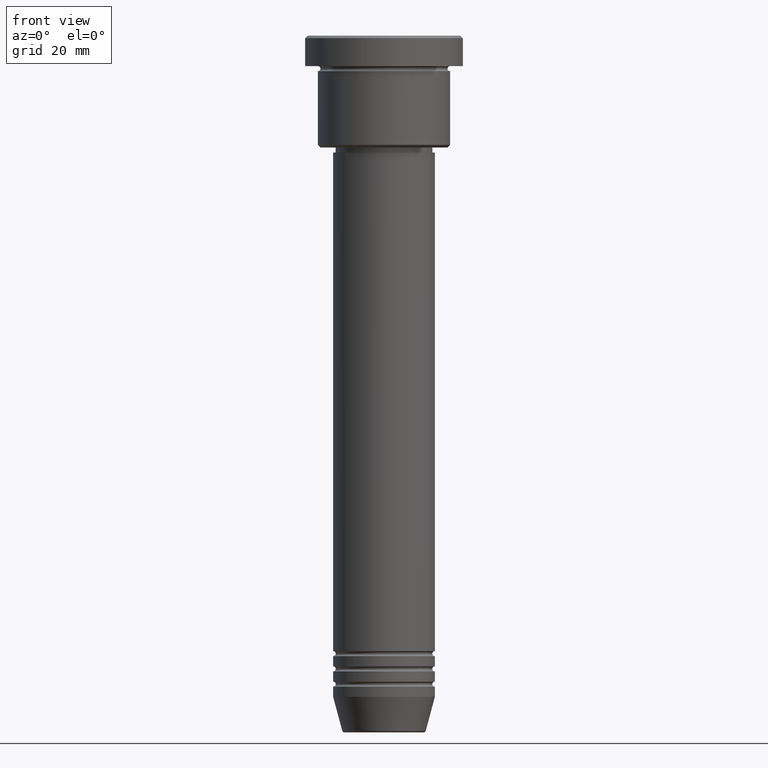
[diagram: clean part render]
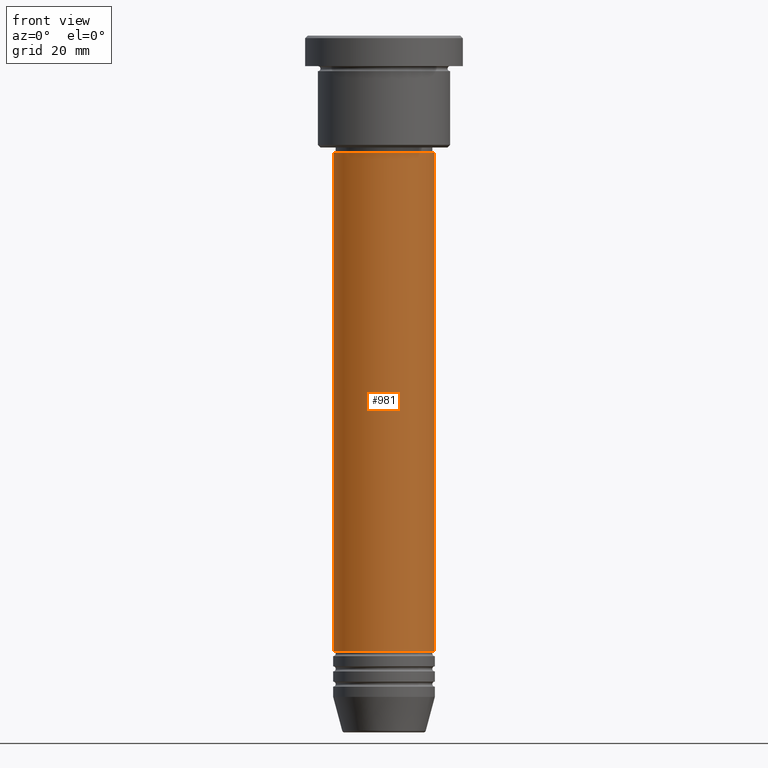
[diagram: same view with one face highlighted and labeled with its STEP entity id]
A machine part, front view. The second image highlights one B-rep face of the part: STEP entity #981.
In plain terms, the highlighted cylindrical surface (partial cylindrical patch) has radius 10 mm, axis along (-0, -0, 1).
Its self-contained STEP definition (entity closure, byte-faithful):
#4 = DIRECTION ( 'NONE',  ( 1.000000000000000000, 0.000000000000000000, 0.000000000000000000 ) ) ;
#90 = VECTOR ( 'NONE', #540, 1000.000000000000000 ) ;
#124 = CARTESIAN_POINT ( 'NONE',  ( -10.00000000000000000, 1.224646799147353256E-15, -120.9999999999999716 ) ) ;
#187 = AXIS2_PLACEMENT_3D ( 'NONE', #1167, #458, #4 ) ;
#192 = ORIENTED_EDGE ( 'NONE', *, *, #1096, .T. ) ;
#206 = DIRECTION ( 'NONE',  ( -0.000000000000000000, -0.000000000000000000, 1.000000000000000000 ) ) ;
#267 = DIRECTION ( 'NONE',  ( -0.000000000000000000, -0.000000000000000000, 1.000000000000000000 ) ) ;
#270 = EDGE_CURVE ( 'NONE', #878, #1010, #357, .T. ) ;
#352 = EDGE_CURVE ( 'NONE', #1010, #876, #506, .T. ) ;
#357 = LINE ( 'NONE', #526, #90 ) ;
#411 = DIRECTION ( 'NONE',  ( 1.000000000000000000, 0.000000000000000000, 0.000000000000000000 ) ) ;
#458 = DIRECTION ( 'NONE',  ( -0.000000000000000000, -0.000000000000000000, 1.000000000000000000 ) ) ;
#462 = CARTESIAN_POINT ( 'NONE',  ( 0.000000000000000000, 0.000000000000000000, 0.000000000000000000 ) ) ;
#472 = FACE_OUTER_BOUND ( 'NONE', #806, .T. ) ;
#477 = DIRECTION ( 'NONE',  ( 1.000000000000000000, 0.000000000000000000, 0.000000000000000000 ) ) ;
#506 = CIRCLE ( 'NONE', #187, 10.00000000000000000 ) ;
#526 = CARTESIAN_POINT ( 'NONE',  ( -10.00000000000000000, 1.224646799147353256E-15, 0.000000000000000000 ) ) ;
#534 = ORIENTED_EDGE ( 'NONE', *, *, #776, .T. ) ;
#540 = DIRECTION ( 'NONE',  ( -0.000000000000000000, -0.000000000000000000, 1.000000000000000000 ) ) ;
#610 = VERTEX_POINT ( 'NONE', #755 ) ;
#626 = AXIS2_PLACEMENT_3D ( 'NONE', #936, #754, #411 ) ;
#754 = DIRECTION ( 'NONE',  ( -0.000000000000000000, -0.000000000000000000, 1.000000000000000000 ) ) ;
#755 = CARTESIAN_POINT ( 'NONE',  ( 10.00000000000000000, 0.000000000000000000, -120.9999999999999716 ) ) ;
#776 = EDGE_CURVE ( 'NONE', #610, #876, #1160, .T. ) ;
#790 = ORIENTED_EDGE ( 'NONE', *, *, #270, .F. ) ;
#806 = EDGE_LOOP ( 'NONE', ( #790, #192, #534, #1138 ) ) ;
#876 = VERTEX_POINT ( 'NONE', #927 ) ;
#878 = VERTEX_POINT ( 'NONE', #124 ) ;
#927 = CARTESIAN_POINT ( 'NONE',  ( 10.00000000000000000, 0.000000000000000000, -23.00000000000000000 ) ) ;
#936 = CARTESIAN_POINT ( 'NONE',  ( 0.000000000000000000, 0.000000000000000000, -120.9999999999999716 ) ) ;
#962 = CIRCLE ( 'NONE', #626, 10.00000000000000000 ) ;
#981 = ADVANCED_FACE ( 'NONE', ( #472 ), #1016, .T. ) ;
#1004 = AXIS2_PLACEMENT_3D ( 'NONE', #462, #206, #477 ) ;
#1010 = VERTEX_POINT ( 'NONE', #1031 ) ;
#1016 = CYLINDRICAL_SURFACE ( 'NONE', #1004, 10.00000000000000000 ) ;
#1031 = CARTESIAN_POINT ( 'NONE',  ( -10.00000000000000000, 1.224646799147353256E-15, -23.00000000000000000 ) ) ;
#1077 = CARTESIAN_POINT ( 'NONE',  ( 10.00000000000000000, 0.000000000000000000, 0.000000000000000000 ) ) ;
#1096 = EDGE_CURVE ( 'NONE', #878, #610, #962, .T. ) ;
#1135 = VECTOR ( 'NONE', #267, 1000.000000000000000 ) ;
#1138 = ORIENTED_EDGE ( 'NONE', *, *, #352, .F. ) ;
#1160 = LINE ( 'NONE', #1077, #1135 ) ;
#1167 = CARTESIAN_POINT ( 'NONE',  ( 0.000000000000000000, 0.000000000000000000, -23.00000000000000000 ) ) ;